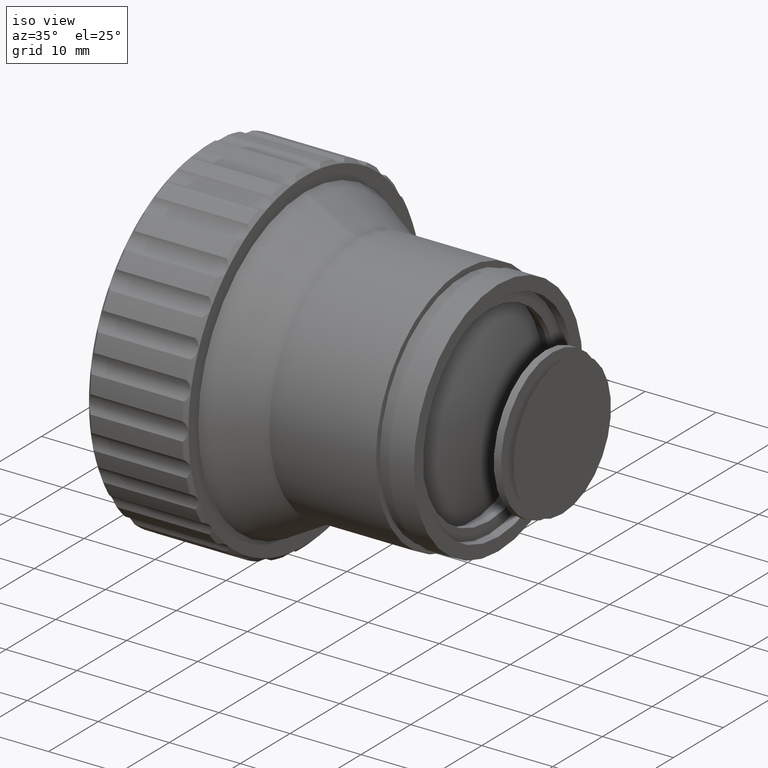
[diagram: clean part render]
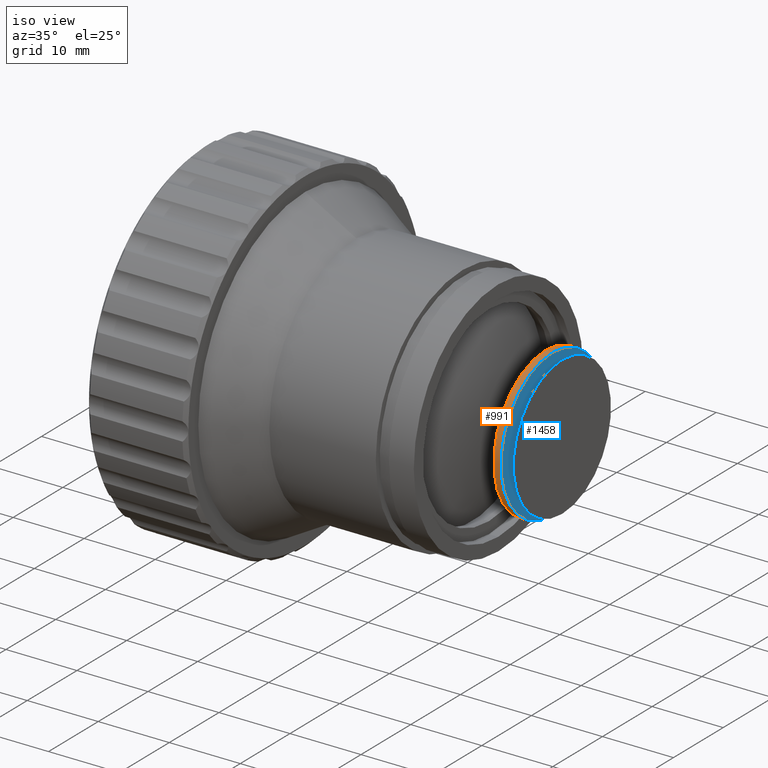
[diagram: same view with the hole feature highlighted: cylindrical wall and planar end face, labeled with their STEP entity ids]
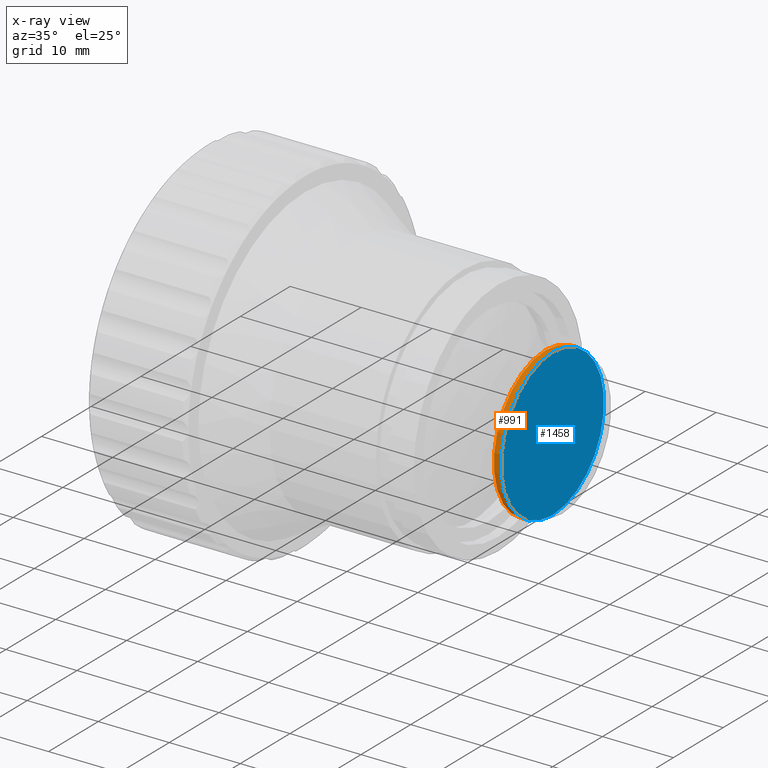
[diagram: x-ray of the same camera — body ghosted, the hole faces saturated]
A machine part, iso view. The highlighted faces form one hole feature of diameter 20.7392 mm: the cylindrical wall (entity #991, orange) and its adjacent planar end face (entity #1458, blue) — they share a circular edge in the B-rep.
The next image is the same camera in x-ray (body ghosted, the hole faces saturated) — the bore reads through the body.
Wall:
#74 = DIRECTION ( 'NONE',  ( 0.000000000000000000, 0.000000000000000000, 1.000000000000000000 ) ) ;
#119 = AXIS2_PLACEMENT_3D ( 'NONE', #329, #2860, #1797 ) ;
#163 = ORIENTED_EDGE ( 'NONE', *, *, #3759, .T. ) ;
#279 = AXIS2_PLACEMENT_3D ( 'NONE', #1907, #1884, #74 ) ;
#329 = CARTESIAN_POINT ( 'NONE',  ( 47.96008000000001203, 0.000000000000000000, 0.000000000000000000 ) ) ;
#839 = AXIS2_PLACEMENT_3D ( 'NONE', #4823, #2695, #4480 ) ;
#991 = ADVANCED_FACE ( 'NONE', ( #2085, #3641 ), #3255, .T. ) ;
#1296 = CARTESIAN_POINT ( 'NONE',  ( 47.96008000000001203, 0.000000000000000000, 10.36960599999999921 ) ) ;
#1415 = EDGE_CURVE ( 'NONE', #3090, #3090, #2780, .T. ) ;
#1464 = EDGE_LOOP ( 'NONE', ( #163 ) ) ;
#1660 = CIRCLE ( 'NONE', #279, 10.36960599999999921 ) ;
#1797 = DIRECTION ( 'NONE',  ( 0.000000000000000000, 0.000000000000000000, 1.000000000000000000 ) ) ;
#1884 = DIRECTION ( 'NONE',  ( -1.000000000000000000, -0.000000000000000000, -0.000000000000000000 ) ) ;
#1907 = CARTESIAN_POINT ( 'NONE',  ( 48.96007999999999782, 0.000000000000000000, 0.000000000000000000 ) ) ;
#2085 = FACE_OUTER_BOUND ( 'NONE', #1464, .T. ) ;
#2695 = DIRECTION ( 'NONE',  ( 1.000000000000000000, 0.000000000000000000, 0.000000000000000000 ) ) ;
#2780 = CIRCLE ( 'NONE', #839, 10.36960599999999921 ) ;
#2860 = DIRECTION ( 'NONE',  ( -1.000000000000000000, -0.000000000000000000, -0.000000000000000000 ) ) ;
#2939 = EDGE_LOOP ( 'NONE', ( #3896 ) ) ;
#3090 = VERTEX_POINT ( 'NONE', #1296 ) ;
#3255 = CYLINDRICAL_SURFACE ( 'NONE', #119, 10.36960599999999921 ) ;
#3494 = CARTESIAN_POINT ( 'NONE',  ( 48.96007999999999782, 0.000000000000000000, 10.36960599999999921 ) ) ;
#3641 = FACE_OUTER_BOUND ( 'NONE', #2939, .T. ) ;
#3759 = EDGE_CURVE ( 'NONE', #4623, #4623, #1660, .T. ) ;
#3896 = ORIENTED_EDGE ( 'NONE', *, *, #1415, .T. ) ;
#4480 = DIRECTION ( 'NONE',  ( 0.000000000000000000, 0.000000000000000000, 1.000000000000000000 ) ) ;
#4623 = VERTEX_POINT ( 'NONE', #3494 ) ;
#4823 = CARTESIAN_POINT ( 'NONE',  ( 47.96008000000001203, 0.000000000000000000, 0.000000000000000000 ) ) ;
End face:
#74 = DIRECTION ( 'NONE',  ( 0.000000000000000000, 0.000000000000000000, 1.000000000000000000 ) ) ;
#93 = DIRECTION ( 'NONE',  ( 0.000000000000000000, 0.000000000000000000, 1.000000000000000000 ) ) ;
#279 = AXIS2_PLACEMENT_3D ( 'NONE', #1907, #1884, #74 ) ;
#1458 = ADVANCED_FACE ( 'NONE', ( #3770 ), #3425, .F. ) ;
#1660 = CIRCLE ( 'NONE', #279, 10.36960599999999921 ) ;
#1688 = AXIS2_PLACEMENT_3D ( 'NONE', #1855, #1903, #93 ) ;
#1855 = CARTESIAN_POINT ( 'NONE',  ( 48.96007999999999782, 10.36960599999999921, 0.000000000000000000 ) ) ;
#1884 = DIRECTION ( 'NONE',  ( -1.000000000000000000, -0.000000000000000000, -0.000000000000000000 ) ) ;
#1903 = DIRECTION ( 'NONE',  ( -1.000000000000000000, 0.000000000000000000, 0.000000000000000000 ) ) ;
#1907 = CARTESIAN_POINT ( 'NONE',  ( 48.96007999999999782, 0.000000000000000000, 0.000000000000000000 ) ) ;
#3425 = PLANE ( 'NONE',  #1688 ) ;
#3494 = CARTESIAN_POINT ( 'NONE',  ( 48.96007999999999782, 0.000000000000000000, 10.36960599999999921 ) ) ;
#3652 = ORIENTED_EDGE ( 'NONE', *, *, #3759, .F. ) ;
#3759 = EDGE_CURVE ( 'NONE', #4623, #4623, #1660, .T. ) ;
#3770 = FACE_OUTER_BOUND ( 'NONE', #4580, .T. ) ;
#4580 = EDGE_LOOP ( 'NONE', ( #3652 ) ) ;
#4623 = VERTEX_POINT ( 'NONE', #3494 ) ;